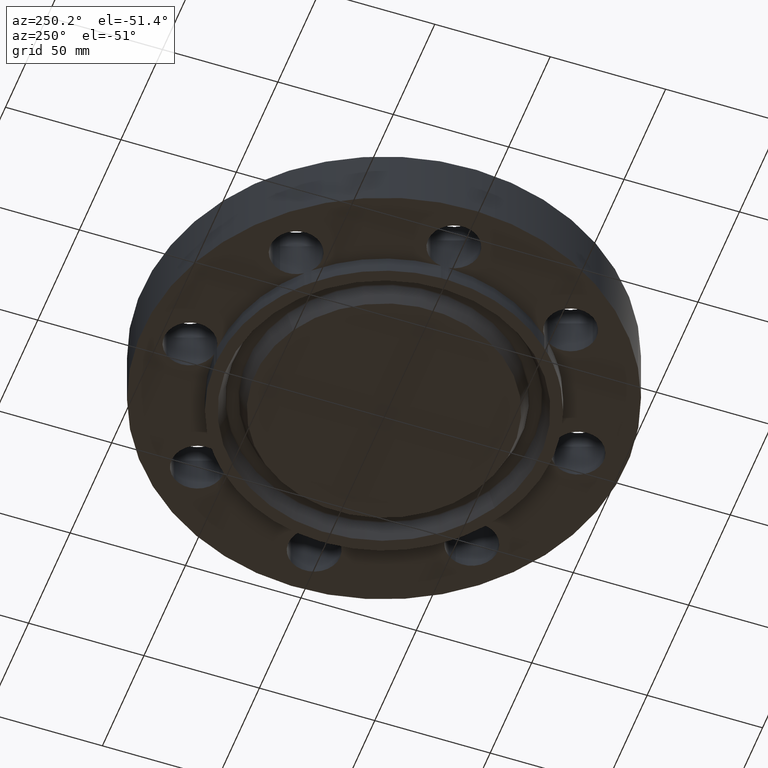
[diagram: clean part render]
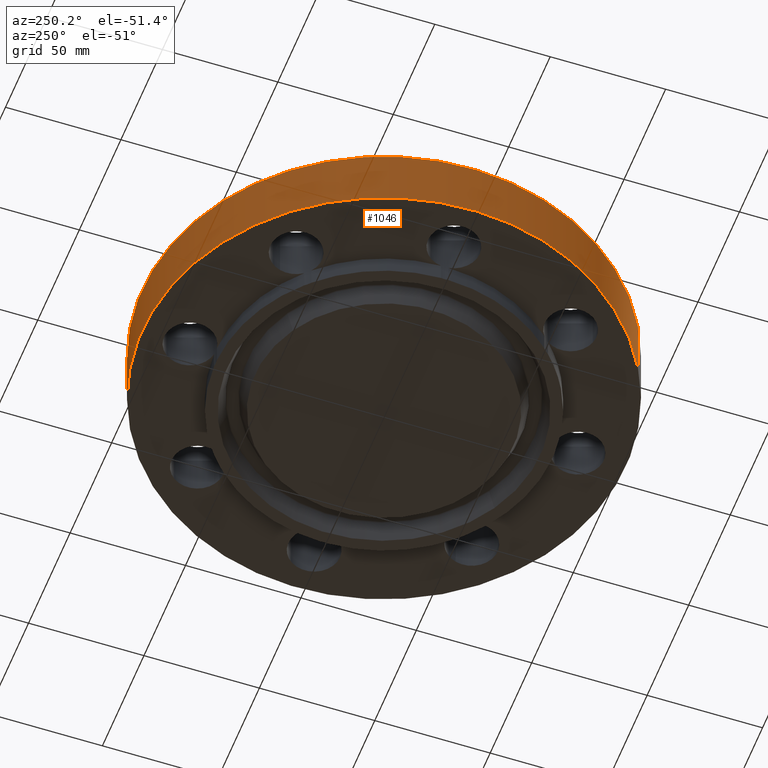
[diagram: same view with one face highlighted and labeled with its STEP entity id]
A machine part, auxiliary view. The second image highlights one B-rep face of the part: STEP entity #1046.
In plain terms, the highlighted cylindrical surface (partial cylindrical patch) has radius 104.775 mm, axis along (0, 0, -1).
Its self-contained STEP definition (entity closure, byte-faithful):
#791=AXIS2_PLACEMENT_3D('Circle Axis2P3D',#789,#790,$) ;
#1007=AXIS2_PLACEMENT_3D('Cylinder Axis2P3D',#1004,#1005,#1006) ;
#1037=AXIS2_PLACEMENT_3D('Circle Axis2P3D',#1035,#1036,$) ;
#789=CARTESIAN_POINT('Axis2P3D Location',(0.,0.,0.)) ;
#793=CARTESIAN_POINT('Vertex',(-1.97763034675,-3.62002806781,4.19611851827E-016)) ;
#795=CARTESIAN_POINT('Vertex',(1.97763034675,3.62002806781,4.19611851827E-016)) ;
#1004=CARTESIAN_POINT('Axis2P3D Location',(0.,0.,0.373750000001)) ;
#1009=CARTESIAN_POINT('Line Origine',(1.97763034675,3.62002806781,0.530000000002)) ;
#1013=CARTESIAN_POINT('Vertex',(1.97763034675,3.62002806781,1.06)) ;
#1020=CARTESIAN_POINT('Vertex',(-1.97763034675,-3.62002806781,1.06)) ;
#1023=CARTESIAN_POINT('Line Origine',(-1.97763034675,-3.62002806781,0.530000000002)) ;
#1035=CARTESIAN_POINT('Axis2P3D Location',(0.,0.,1.06)) ;
#790=DIRECTION('Axis2P3D Direction',(0.,0.,-0.0393700787402)) ;
#1005=DIRECTION('Axis2P3D Direction',(0.,0.,-0.0393700787402)) ;
#1006=DIRECTION('Axis2P3D XDirection',(-0.0188750212049,-0.0345504945626,0.)) ;
#1010=DIRECTION('Vector Direction',(0.,0.,-0.0393700787402)) ;
#1024=DIRECTION('Vector Direction',(0.,0.,-0.0393700787402)) ;
#1036=DIRECTION('Axis2P3D Direction',(0.,0.,-0.0393700787402)) ;
#1011=VECTOR('Line Direction',#1010,0.0393700787402) ;
#1025=VECTOR('Line Direction',#1024,0.0393700787402) ;
#1041=ORIENTED_EDGE('',*,*,#797,.F.) ;
#1042=ORIENTED_EDGE('',*,*,#1027,.T.) ;
#1043=ORIENTED_EDGE('',*,*,#1039,.T.) ;
#1044=ORIENTED_EDGE('',*,*,#1015,.F.) ;
#1046=ADVANCED_FACE('PartBody',(#1045),#1008,.T.) ;
#792=CIRCLE('generated circle',#791,4.12500000002) ;
#1038=CIRCLE('generated circle',#1037,4.12500000002) ;
#1008=CYLINDRICAL_SURFACE('generated cylinder',#1007,4.12500000002) ;
#797=EDGE_CURVE('',#794,#796,#792,.T.) ;
#1015=EDGE_CURVE('',#796,#1014,#1012,.F.) ;
#1027=EDGE_CURVE('',#794,#1021,#1026,.F.) ;
#1039=EDGE_CURVE('',#1021,#1014,#1038,.T.) ;
#1040=EDGE_LOOP('',(#1041,#1042,#1043,#1044)) ;
#1045=FACE_OUTER_BOUND('',#1040,.T.) ;
#1012=LINE('Line',#1009,#1011) ;
#1026=LINE('Line',#1023,#1025) ;
#794=VERTEX_POINT('',#793) ;
#796=VERTEX_POINT('',#795) ;
#1014=VERTEX_POINT('',#1013) ;
#1021=VERTEX_POINT('',#1020) ;